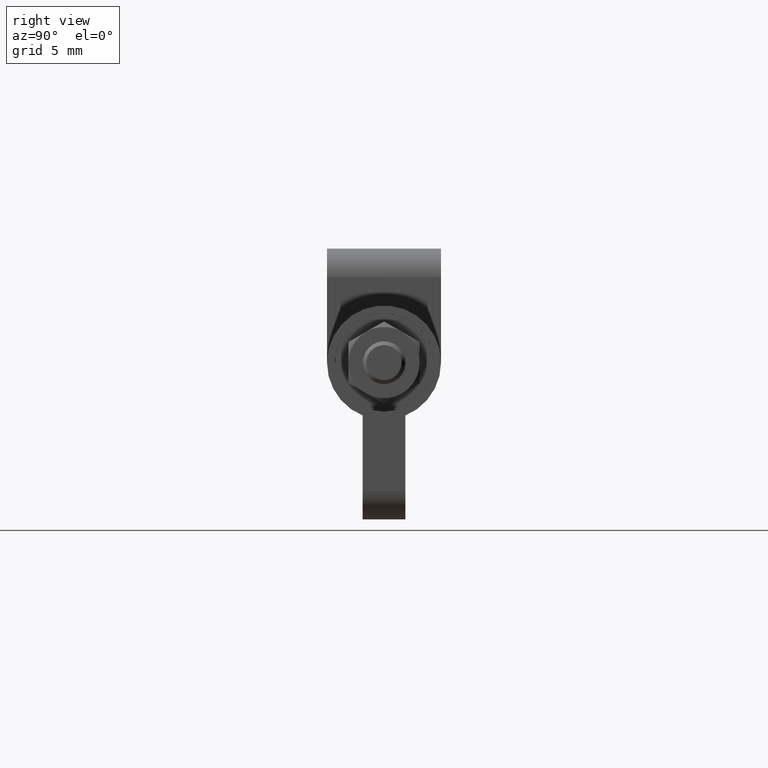
[diagram: clean part render]
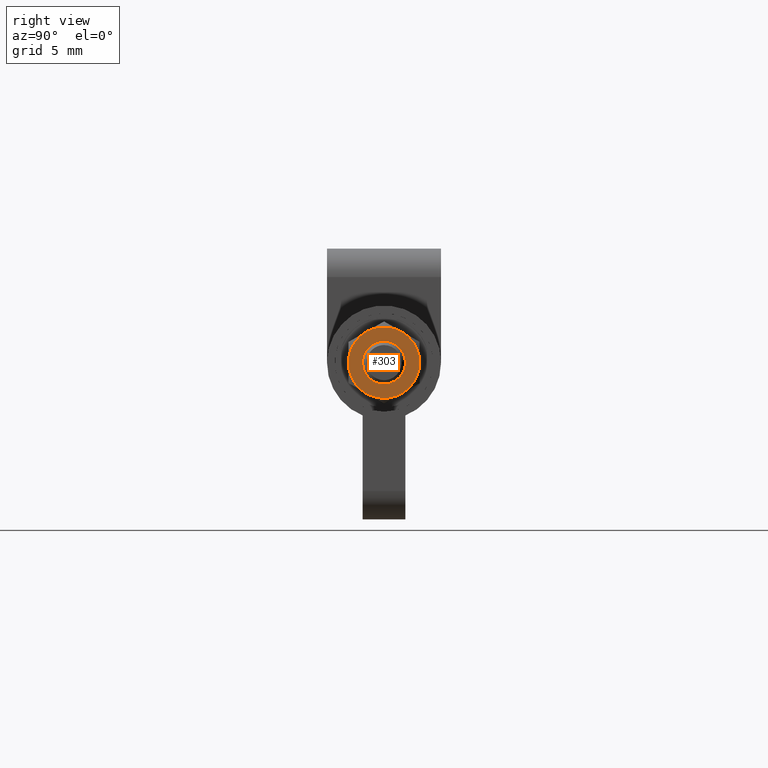
[diagram: same view with one face highlighted and labeled with its STEP entity id]
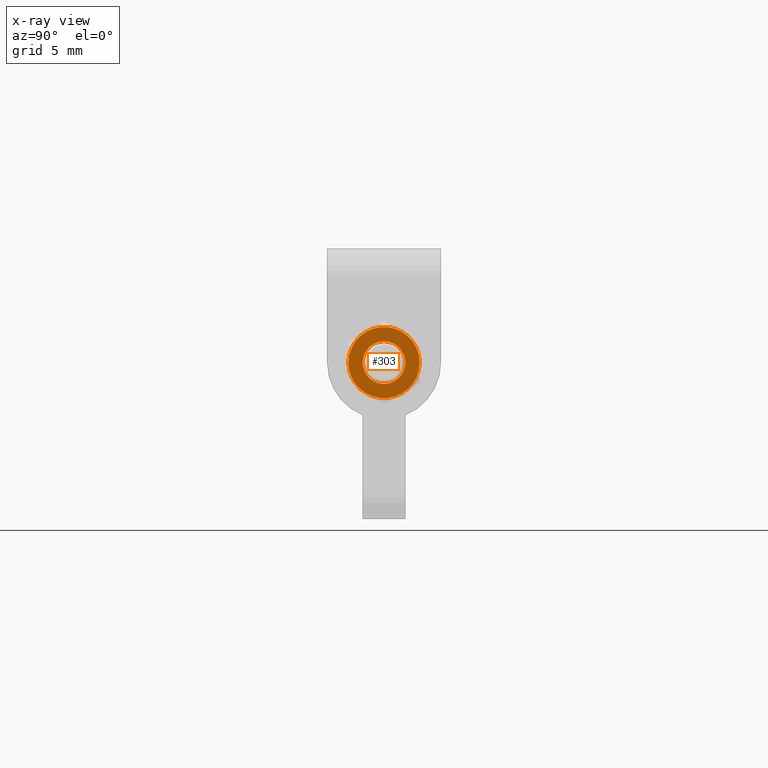
[diagram: x-ray of the same camera — body ghosted, the highlighted face saturated]
A machine part, right view. The second image highlights one B-rep face of the part: STEP entity #303.
The next image is the same camera in x-ray: the body ghosted, the highlighted face saturated — about 0% of this face is hidden behind the body in this view.
In plain terms, the highlighted planar face has unit normal (-1, 0, 0).
Its self-contained STEP definition (entity closure, byte-faithful):
#303=ADVANCED_FACE('',(#796,#797),#795,.F.);
#795=PLANE('',#1619);
#796=FACE_OUTER_BOUND('',#1620,.T.);
#797=FACE_BOUND('',#1621,.T.);
#1616=CARTESIAN_POINT('',(2.35000000000E+01,-3.00000095569E+00,3.46410414532E+00));
#1617=DIRECTION('',(-1.00000000000E+00,0.00000000000E+00,0.00000000000E+00));
#1618=DIRECTION('',(0.00000000000E+00,1.00000000000E+00,0.00000000000E+00));
#1619=AXIS2_PLACEMENT_3D('',#1616,#1617,#1618);
#1620=EDGE_LOOP('',(#2130,#2131,#2132,#2133,#2134,#2135));
#1621=EDGE_LOOP('',(#2136,#2137,#2138));
#2130=ORIENTED_EDGE('',*,*,#2537,.F.);
#2131=ORIENTED_EDGE('',*,*,#2519,.T.);
#2132=ORIENTED_EDGE('',*,*,#2538,.F.);
#2133=ORIENTED_EDGE('',*,*,#2539,.F.);
#2134=ORIENTED_EDGE('',*,*,#2523,.F.);
#2135=ORIENTED_EDGE('',*,*,#2529,.F.);
#2136=ORIENTED_EDGE('',*,*,#2540,.F.);
#2137=ORIENTED_EDGE('',*,*,#2541,.F.);
#2138=ORIENTED_EDGE('',*,*,#2542,.F.);
#2519=EDGE_CURVE('',#3365,#3358,#3366,.T.);
#2523=EDGE_CURVE('',#3386,#3378,#3393,.T.);
#2529=EDGE_CURVE('',#3426,#3386,#3433,.T.);
#2537=EDGE_CURVE('',#3365,#3426,#3487,.T.);
#2538=EDGE_CURVE('',#3493,#3358,#3494,.T.);
#2539=EDGE_CURVE('',#3378,#3493,#3500,.T.);
#2540=EDGE_CURVE('',#3506,#3507,#3508,.T.);
#2541=EDGE_CURVE('',#3514,#3506,#3515,.T.);
#2542=EDGE_CURVE('',#3507,#3514,#3521,.T.);
#3358=VERTEX_POINT('',#4894);
#3365=VERTEX_POINT('',#4899);
#3366=CIRCLE('',#4903,2.49999837633E+00);
#3378=VERTEX_POINT('',#4914);
#3386=VERTEX_POINT('',#4926);
#3393=CIRCLE('',#4934,2.50000227914E+00);
#3426=VERTEX_POINT('',#4960);
#3433=CIRCLE('',#4968,2.50000227915E+00);
#3487=CIRCLE('',#5006,2.49999837633E+00);
#3493=VERTEX_POINT('',#5007);
#3494=CIRCLE('',#5011,2.50000000000E+00);
#3500=CIRCLE('',#5015,2.50000000000E+00);
#3506=VERTEX_POINT('',#5016);
#3507=VERTEX_POINT('',#5017);
#3508=CIRCLE('',#5021,1.50000000000E+00);
#3514=VERTEX_POINT('',#5022);
#3515=CIRCLE('',#5026,1.50000000000E+00);
#3521=CIRCLE('',#5030,1.50000000000E+00);
#4894=CARTESIAN_POINT('',(2.35000000000E+01,1.25000368065E+00,-2.16506138443E+00));
#4899=CARTESIAN_POINT('',(2.35000000000E+01,-1.24999869277E+00,-2.16506225473E+00));
#4900=CARTESIAN_POINT('',(2.35000000000E+01,1.74024278774E-06,-8.70119589269E-07));
#4901=DIRECTION('',(1.00000000000E+00,-1.49420038751E-15,-8.98290047555E-15));
#4902=DIRECTION('',(8.52651836682E-15,5.00000497938E-01,8.66025116299E-01));
#4903=AXIS2_PLACEMENT_3D('',#4900,#4901,#4902);
#4914=CARTESIAN_POINT('',(2.35000000000E+01,1.24999956289E+00,2.16506376183E+00));
#4926=CARTESIAN_POINT('',(2.35000000000E+01,-1.25000490204E+00,2.16506349994E+00));
#4931=CARTESIAN_POINT('',(2.35000000000E+01,-2.44277380958E-06,-1.22139310577E-06));
#4932=DIRECTION('',(-1.00000000000E+00,-3.07673522364E-16,-1.77635641012E-16));
#4933=DIRECTION('',(-0.00000000000E+00,5.00000527878E-01,-8.66025099014E-01));
#4934=AXIS2_PLACEMENT_3D('',#4931,#4932,#4933);
#4960=CARTESIAN_POINT('',(2.35000000000E+01,-2.50000000000E+00,0.00000000000E+00));
#4965=CARTESIAN_POINT('',(2.35000000000E+01,2.27914503337E-06,1.50481758809E-06));
#4966=DIRECTION('',(-1.00000000000E+00,1.71077923474E-21,-2.84217304462E-15));
#4967=DIRECTION('',(3.76158192263E-37,1.00000000000E+00,6.01926486486E-07));
#4968=AXIS2_PLACEMENT_3D('',#4965,#4966,#4967);
#5003=CARTESIAN_POINT('',(2.35000000000E+01,-1.62366916578E-06,1.07203465527E-06));
#5004=DIRECTION('',(-1.00000000000E+00,-6.15348299776E-16,3.55270703488E-16));
#5005=DIRECTION('',(-0.00000000000E+00,4.99999152373E-01,8.66025893162E-01));
#5006=AXIS2_PLACEMENT_3D('',#5003,#5004,#5005);
#5007=CARTESIAN_POINT('',(2.35000000000E+01,2.50000000000E+00,0.00000000000E+00));
#5008=CARTESIAN_POINT('',(2.35000000000E+01,-2.22044604925E-16,2.22044604925E-16));
#5009=DIRECTION('',(-1.00000000000E+00,8.52651282912E-15,-6.03962214586E-15));
#5010=DIRECTION('',(-8.52651282912E-15,-1.00000000000E+00,8.88178419700E-17));
#5011=AXIS2_PLACEMENT_3D('',#5008,#5009,#5010);
#5012=CARTESIAN_POINT('',(2.35000000000E+01,1.11022302463E-15,6.66133814775E-16));
#5013=DIRECTION('',(-1.00000000000E+00,-3.07674011890E-16,1.77635590765E-16));
#5014=DIRECTION('',(-0.00000000000E+00,-4.99999825156E-01,-8.66025504731E-01));
#5015=AXIS2_PLACEMENT_3D('',#5012,#5013,#5014);
#5016=CARTESIAN_POINT('',(2.35000000000E+01,1.48951435429E+00,-1.77050807278E-01));
#5017=CARTESIAN_POINT('',(2.35000000000E+01,7.49400541622E-16,1.50000000000E+00));
#5018=CARTESIAN_POINT('',(2.35000000000E+01,-6.66133814775E-16,-7.77156117238E-16));
#5019=DIRECTION('',(1.00000000000E+00,-1.03781810671E-14,-8.73105391155E-14));
#5020=DIRECTION('',(8.73105391155E-14,5.68989300120E-16,1.00000000000E+00));
#5021=AXIS2_PLACEMENT_3D('',#5018,#5019,#5020);
#5022=CARTESIAN_POINT('',(2.35000000000E+01,-1.48948366021E+00,1.77308843490E-01));
#5023=CARTESIAN_POINT('',(2.35000000000E+01,-6.66133814775E-16,-7.77156117238E-16));
#5024=DIRECTION('',(1.00000000000E+00,-1.03781810671E-14,-8.73105391155E-14));
#5025=DIRECTION('',(8.73105391155E-14,5.68989300120E-16,1.00000000000E+00));
#5026=AXIS2_PLACEMENT_3D('',#5023,#5024,#5025);
#5027=CARTESIAN_POINT('',(2.35000000000E+01,-6.66133814775E-16,-7.77156117238E-16));
#5028=DIRECTION('',(1.00000000000E+00,-1.03781810671E-14,-8.73105391155E-14));
#5029=DIRECTION('',(8.73105391155E-14,5.68989300120E-16,1.00000000000E+00));
#5030=AXIS2_PLACEMENT_3D('',#5027,#5028,#5029);